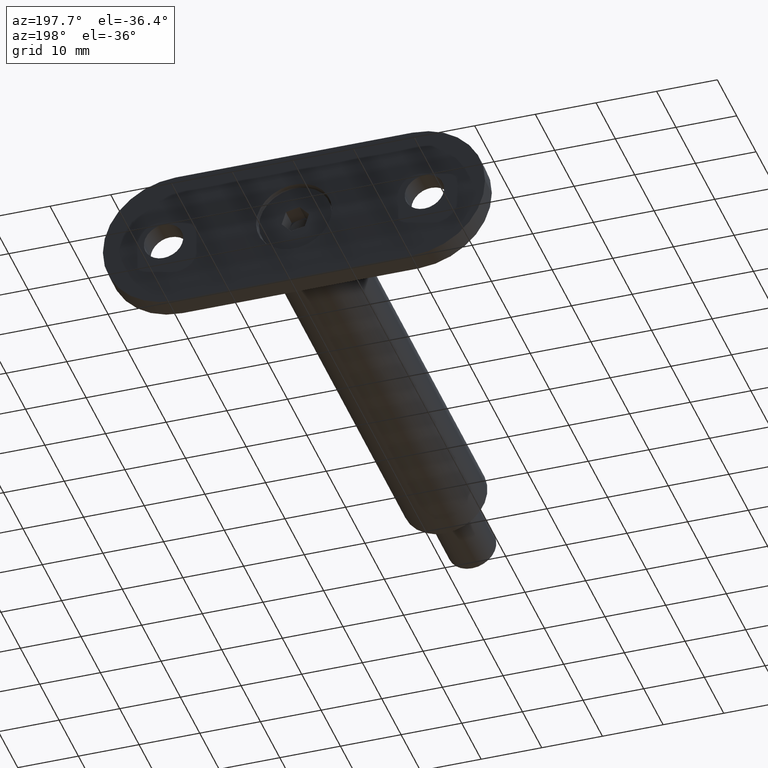
[diagram: clean part render]
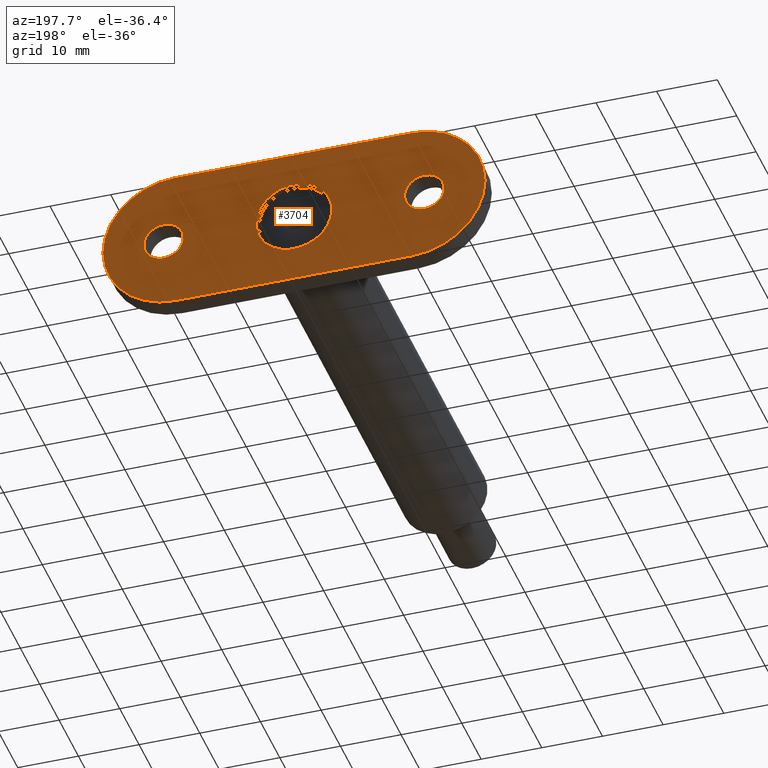
[diagram: same view with one face highlighted and labeled with its STEP entity id]
A machine part, auxiliary view. The second image highlights one B-rep face of the part: STEP entity #3704.
In plain terms, the highlighted planar face has unit normal (0, -1, -0).
Its self-contained STEP definition (entity closure, byte-faithful):
#10 = CARTESIAN_POINT ( 'NONE',  ( -3.250000000000000444, 3.500000000000002665, -21.50000000000000000 ) ) ;
#108 = VERTEX_POINT ( 'NONE', #6934 ) ;
#118 = CARTESIAN_POINT ( 'NONE',  ( -6.324512672832106898E-16, 3.500000000000003109, 21.50000000000000000 ) ) ;
#220 = DIRECTION ( 'NONE',  ( -1.807003620809173892E-16, 1.000000000000000000, -0.000000000000000000 ) ) ;
#260 = EDGE_CURVE ( 'NONE', #8885, #1071, #2167, .T. ) ;
#381 = DIRECTION ( 'NONE',  ( 1.000000000000000000, 1.807003620809174139E-16, 0.000000000000000000 ) ) ;
#680 = ORIENTED_EDGE ( 'NONE', *, *, #11860, .T. ) ;
#984 = AXIS2_PLACEMENT_3D ( 'NONE', #10699, #6546, #4415 ) ;
#1071 = VERTEX_POINT ( 'NONE', #10074 ) ;
#1142 = DIRECTION ( 'NONE',  ( -1.807003620809173892E-16, 1.000000000000000000, -0.000000000000000000 ) ) ;
#1210 = AXIS2_PLACEMENT_3D ( 'NONE', #9867, #1142, #3369 ) ;
#1268 = AXIS2_PLACEMENT_3D ( 'NONE', #3148, #4367, #11718 ) ;
#1297 = CARTESIAN_POINT ( 'NONE',  ( -12.00000000000000000, 3.500000000000003109, -19.50000000000000355 ) ) ;
#1304 = VERTEX_POINT ( 'NONE', #11821 ) ;
#2107 = CIRCLE ( 'NONE', #2821, 12.00000000000000000 ) ;
#2167 = LINE ( 'NONE', #6216, #11383 ) ;
#2256 = CARTESIAN_POINT ( 'NONE',  ( 12.00000000000000000, 3.500000000000003109, 19.50000000000000000 ) ) ;
#2821 = AXIS2_PLACEMENT_3D ( 'NONE', #4392, #13032, #381 ) ;
#2880 = DIRECTION ( 'NONE',  ( 0.000000000000000000, 0.000000000000000000, -1.000000000000000000 ) ) ;
#3148 = CARTESIAN_POINT ( 'NONE',  ( -6.324512672832112814E-16, 3.500000000000003109, 0.000000000000000000 ) ) ;
#3182 = ORIENTED_EDGE ( 'NONE', *, *, #6583, .T. ) ;
#3364 = ORIENTED_EDGE ( 'NONE', *, *, #11476, .F. ) ;
#3369 = DIRECTION ( 'NONE',  ( 1.000000000000000000, 1.807003620809174139E-16, 0.000000000000000000 ) ) ;
#3704 = ADVANCED_FACE ( 'NONE', ( #10342, #11017, #9995, #5128 ), #8448, .F. ) ;
#4367 = DIRECTION ( 'NONE',  ( 0.000000000000000000, 1.000000000000000000, 0.000000000000000000 ) ) ;
#4392 = CARTESIAN_POINT ( 'NONE',  ( 4.814824860968089633E-31, 3.500000000000003109, -19.50000000000000355 ) ) ;
#4415 = DIRECTION ( 'NONE',  ( 1.000000000000000000, 1.807003620809174139E-16, 0.000000000000000000 ) ) ;
#4633 = AXIS2_PLACEMENT_3D ( 'NONE', #8759, #220, #7764 ) ;
#4776 = EDGE_CURVE ( 'NONE', #8129, #8129, #13682, .T. ) ;
#4900 = EDGE_CURVE ( 'NONE', #10289, #8885, #10995, .T. ) ;
#5128 = FACE_OUTER_BOUND ( 'NONE', #10066, .T. ) ;
#5811 = ORIENTED_EDGE ( 'NONE', *, *, #4900, .T. ) ;
#6002 = DIRECTION ( 'NONE',  ( -1.807003620809173892E-16, 1.000000000000000000, 0.000000000000000000 ) ) ;
#6043 = VERTEX_POINT ( 'NONE', #1297 ) ;
#6059 = CARTESIAN_POINT ( 'NONE',  ( -12.00000000000000000, 3.500000000000003109, 31.50000000000000000 ) ) ;
#6216 = CARTESIAN_POINT ( 'NONE',  ( 12.00000000000000000, 3.500000000000003109, 31.50000000000000000 ) ) ;
#6546 = DIRECTION ( 'NONE',  ( -1.807003620809173892E-16, 1.000000000000000000, -0.000000000000000000 ) ) ;
#6583 = EDGE_CURVE ( 'NONE', #1304, #6043, #2107, .T. ) ;
#6653 = VERTEX_POINT ( 'NONE', #9583 ) ;
#6787 = CIRCLE ( 'NONE', #8640, 3.250000000000000000 ) ;
#6934 = CARTESIAN_POINT ( 'NONE',  ( -12.00000000000000000, 3.500000000000003109, 19.50000000000000000 ) ) ;
#7041 = ORIENTED_EDGE ( 'NONE', *, *, #8621, .F. ) ;
#7764 = DIRECTION ( 'NONE',  ( 1.000000000000000000, 1.807003620809174139E-16, 0.000000000000000000 ) ) ;
#8008 = CIRCLE ( 'NONE', #11020, 3.250000000000000000 ) ;
#8129 = VERTEX_POINT ( 'NONE', #10729 ) ;
#8448 = PLANE ( 'NONE',  #12668 ) ;
#8621 = EDGE_CURVE ( 'NONE', #6653, #6653, #6787, .T. ) ;
#8640 = AXIS2_PLACEMENT_3D ( 'NONE', #118, #11025, #8755 ) ;
#8725 = EDGE_CURVE ( 'NONE', #108, #6043, #13823, .T. ) ;
#8755 = DIRECTION ( 'NONE',  ( -1.000000000000000000, -1.334402673828313093E-16, 0.000000000000000000 ) ) ;
#8759 = CARTESIAN_POINT ( 'NONE',  ( 4.814824860968089633E-31, 3.500000000000003109, -19.50000000000000355 ) ) ;
#8885 = VERTEX_POINT ( 'NONE', #2256 ) ;
#9103 = CARTESIAN_POINT ( 'NONE',  ( -2.888894916580853780E-31, 3.500000000000003109, 31.50000000000000000 ) ) ;
#9257 = VECTOR ( 'NONE', #9303, 1000.000000000000000 ) ;
#9303 = DIRECTION ( 'NONE',  ( 0.000000000000000000, 0.000000000000000000, -1.000000000000000000 ) ) ;
#9363 = ORIENTED_EDGE ( 'NONE', *, *, #260, .T. ) ;
#9570 = EDGE_LOOP ( 'NONE', ( #11003 ) ) ;
#9583 = CARTESIAN_POINT ( 'NONE',  ( -3.250000000000000444, 3.500000000000002665, 21.50000000000000000 ) ) ;
#9867 = CARTESIAN_POINT ( 'NONE',  ( 9.629649721936179265E-32, 3.500000000000003109, 19.50000000000000000 ) ) ;
#9934 = EDGE_CURVE ( 'NONE', #1071, #1304, #11257, .T. ) ;
#9995 = FACE_BOUND ( 'NONE', #12946, .T. ) ;
#10066 = EDGE_LOOP ( 'NONE', ( #9363, #11899, #3182, #10783, #680, #5811 ) ) ;
#10074 = CARTESIAN_POINT ( 'NONE',  ( 12.00000000000000000, 3.500000000000003109, -19.50000000000000355 ) ) ;
#10289 = VERTEX_POINT ( 'NONE', #9103 ) ;
#10342 = FACE_BOUND ( 'NONE', #9570, .T. ) ;
#10614 = DIRECTION ( 'NONE',  ( 1.807003620809173892E-16, -1.000000000000000000, 0.000000000000000000 ) ) ;
#10699 = CARTESIAN_POINT ( 'NONE',  ( 9.629649721936179265E-32, 3.500000000000003109, 19.50000000000000000 ) ) ;
#10729 = CARTESIAN_POINT ( 'NONE',  ( -6.324512672832112814E-16, 3.500000000000003109, 6.249999999999998224 ) ) ;
#10783 = ORIENTED_EDGE ( 'NONE', *, *, #8725, .F. ) ;
#10851 = DIRECTION ( 'NONE',  ( 1.000000000000000000, 1.807003620809173892E-16, 0.000000000000000000 ) ) ;
#10995 = CIRCLE ( 'NONE', #984, 12.00000000000000000 ) ;
#11003 = ORIENTED_EDGE ( 'NONE', *, *, #4776, .F. ) ;
#11017 = FACE_BOUND ( 'NONE', #12738, .T. ) ;
#11020 = AXIS2_PLACEMENT_3D ( 'NONE', #11283, #6002, #13413 ) ;
#11025 = DIRECTION ( 'NONE',  ( -1.807003620809173892E-16, 1.000000000000000000, 0.000000000000000000 ) ) ;
#11257 = CIRCLE ( 'NONE', #4633, 12.00000000000000000 ) ;
#11283 = CARTESIAN_POINT ( 'NONE',  ( -6.324512672832106898E-16, 3.500000000000003109, -21.50000000000000000 ) ) ;
#11383 = VECTOR ( 'NONE', #2880, 1000.000000000000000 ) ;
#11476 = EDGE_CURVE ( 'NONE', #13012, #13012, #8008, .T. ) ;
#11718 = DIRECTION ( 'NONE',  ( 0.000000000000000000, 0.000000000000000000, 1.000000000000000000 ) ) ;
#11821 = CARTESIAN_POINT ( 'NONE',  ( -2.888894916580853780E-31, 3.500000000000003109, -31.50000000000000000 ) ) ;
#11860 = EDGE_CURVE ( 'NONE', #108, #10289, #13704, .T. ) ;
#11899 = ORIENTED_EDGE ( 'NONE', *, *, #9934, .T. ) ;
#12668 = AXIS2_PLACEMENT_3D ( 'NONE', #12824, #10614, #10851 ) ;
#12738 = EDGE_LOOP ( 'NONE', ( #3364 ) ) ;
#12824 = CARTESIAN_POINT ( 'NONE',  ( 12.00000000000000000, 3.500000000000003109, 31.50000000000000000 ) ) ;
#12946 = EDGE_LOOP ( 'NONE', ( #7041 ) ) ;
#13012 = VERTEX_POINT ( 'NONE', #10 ) ;
#13032 = DIRECTION ( 'NONE',  ( -1.807003620809173892E-16, 1.000000000000000000, -0.000000000000000000 ) ) ;
#13413 = DIRECTION ( 'NONE',  ( -1.000000000000000000, -1.334402673828313093E-16, 0.000000000000000000 ) ) ;
#13682 = CIRCLE ( 'NONE', #1268, 6.249999999999998224 ) ;
#13704 = CIRCLE ( 'NONE', #1210, 12.00000000000000000 ) ;
#13823 = LINE ( 'NONE', #6059, #9257 ) ;